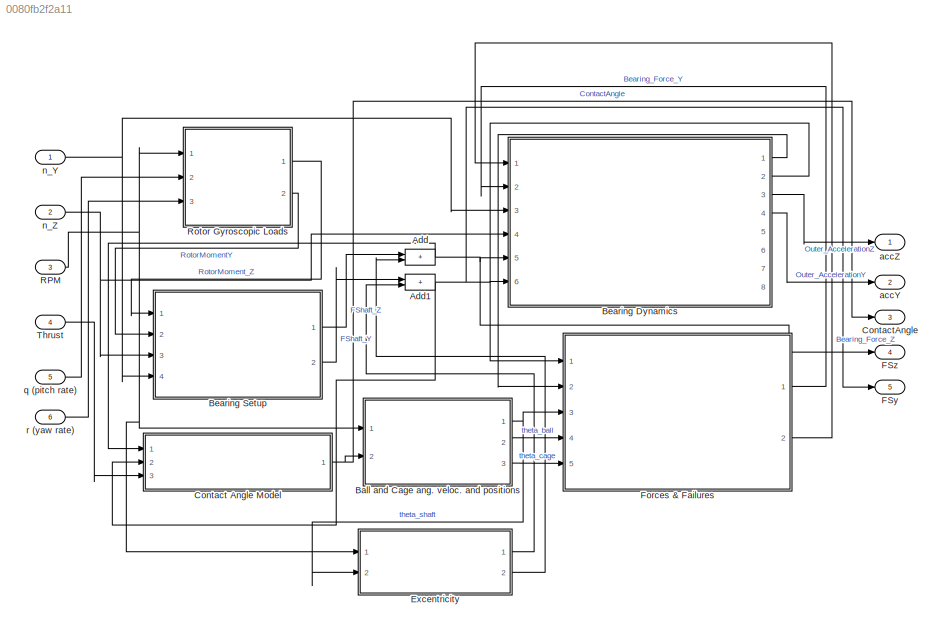
MODEL slx_0080fb2f2a11
KIND model
CONFIG AbsTol = auto
CONFIG EnableMultiTasking = off
CONFIG FixedStep = 1E-5
CONFIG MaxStep = auto
CONFIG MinStep = auto
CONFIG RelTol = 1e-6
CONFIG SampleTimeConstraint = Unconstrained
CONFIG SolverName = ode3
CONFIG StartTime = 0
CONFIG StopTime = 1
BLOCK [Sum] Add
  IconShape = rectangular
  Ports = [2, 1]
BLOCK [Sum] Add1
  IconShape = rectangular
  Ports = [2, 1]
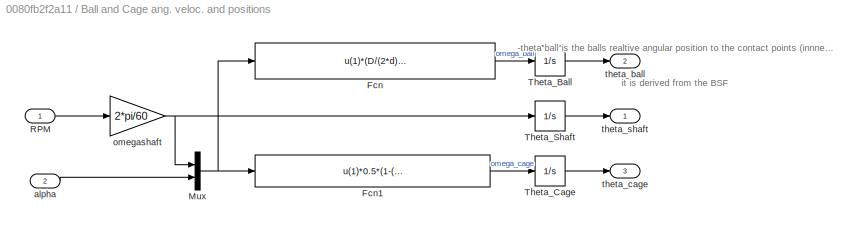
BLOCK [SubSystem] Ball and Cage ang. veloc. and positions 
  Ports = [2, 3]
  RequestExecContextInheritance = off
BLOCK [Fcn] Ball and Cage ang. veloc. and positions /Fcn
  Expr = u(1)*(D/(2*d))*(1-(d/D)^2)*(cos(u(2))^2)
BLOCK [Fcn] Ball and Cage ang. veloc. and positions /Fcn1
  Expr = u(1)*0.5*(1-(d/D)*cos(u(2)))
BLOCK [Mux] Ball and Cage ang. veloc. and positions /Mux
  DisplayOption = bar
  Inputs = 2
  Ports = [2, 1]
BLOCK [Inport] Ball and Cage ang. veloc. and positions /RPM
BLOCK [Integrator] Ball and Cage ang. veloc. and positions /Theta_Ball
  Ports = [1, 1]
  WrapState = on
  WrappedStateLowerValue = 0
  WrappedStateUpperValue = 2*pi()
BLOCK [Integrator] Ball and Cage ang. veloc. and positions /Theta_Cage
  Ports = [1, 1]
  WrapState = on
  WrappedStateLowerValue = 0
  WrappedStateUpperValue = 2*pi()
BLOCK [Integrator] Ball and Cage ang. veloc. and positions /Theta_Shaft
  Ports = [1, 1]
  WrapState = on
  WrappedStateLowerValue = 0
  WrappedStateUpperValue = 2*pi()
BLOCK [Inport] Ball and Cage ang. veloc. and positions /alpha
  Port = 2
BLOCK [Gain] Ball and Cage ang. veloc. and positions /omegashaft
  Gain = 2*pi/60
BLOCK [Outport] Ball and Cage ang. veloc. and positions /theta_ball
  Port = 2
BLOCK [Outport] Ball and Cage ang. veloc. and positions /theta_cage
  Port = 3
BLOCK [Outport] Ball and Cage ang. veloc. and positions /theta_shaft
BLOCK [SubSystem] Bearing Dynamics
  Ports = [6, 8]
  ReferencedSubsystem = Bearing_Dynamics
  RequestExecContextInheritance = off
  ShowPortLabels = SignalName
BLOCK [SubSystem] Bearing Setup
  Ports = [4, 2]
  ReferencedSubsystem = Bearing_Setup
  RequestExecContextInheritance = off
  VariantControl = Choice
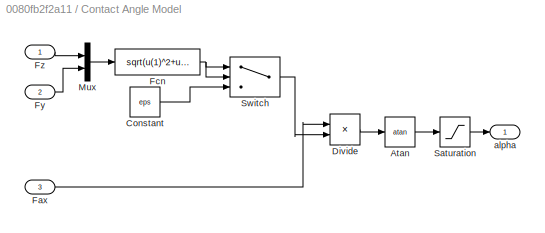
BLOCK [SubSystem] Contact Angle Model
  Ports = [3, 1]
  RequestExecContextInheritance = off
BLOCK [Trigonometry] Contact Angle Model/Atan
  Operator = atan
  Ports = [1, 1]
BLOCK [Constant] Contact Angle Model/Constant
  Value = eps
BLOCK [Product] Contact Angle Model/Divide
  Inputs = */
  NameLocation = top
  Ports = [2, 1]
BLOCK [Inport] Contact Angle Model/Fax
  Port = 3
BLOCK [Fcn] Contact Angle Model/Fcn
  Expr = sqrt(u(1)^2+u(2)^2)
BLOCK [Inport] Contact Angle Model/Fy
  Port = 2
BLOCK [Inport] Contact Angle Model/Fz
BLOCK [Mux] Contact Angle Model/Mux
  DisplayOption = bar
  Inputs = 2
  Ports = [2, 1]
BLOCK [Saturate] Contact Angle Model/Saturation
  LowerLimit = 0
  UpperLimit = pi/4
BLOCK [Switch] Contact Angle Model/Switch
  Criteria = u2 ~= 0
  InputSameDT = off
  SaturateOnIntegerOverflow = off
BLOCK [Outport] Contact Angle Model/alpha
BLOCK [Outport] ContactAngle
  Port = 3
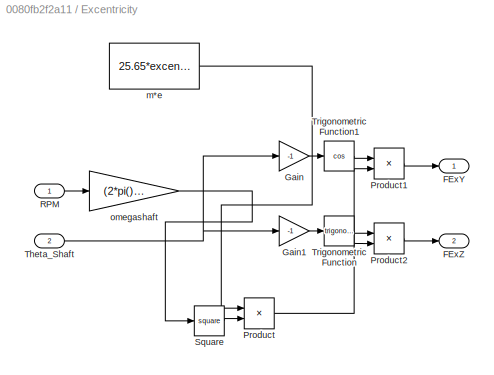
BLOCK [SubSystem] Excentricity
  Ports = [2, 2]
  RequestExecContextInheritance = off
BLOCK [Outport] Excentricity/FExY
BLOCK [Outport] Excentricity/FExZ
  Port = 2
BLOCK [Gain] Excentricity/Gain
  Gain = -1
BLOCK [Gain] Excentricity/Gain1
  Gain = -1
BLOCK [Product] Excentricity/Product
  Ports = [2, 1]
BLOCK [Product] Excentricity/Product1
  Ports = [2, 1]
BLOCK [Product] Excentricity/Product2
  Ports = [2, 1]
BLOCK [Inport] Excentricity/RPM
BLOCK [Math] Excentricity/Square
  NameLocation = right
  Operator = square
  Ports = [1, 1]
BLOCK [Inport] Excentricity/Theta_Shaft
  Port = 2
BLOCK [Trigonometry] Excentricity/Trigonometric Function
  Ports = [1, 1]
BLOCK [Trigonometry] Excentricity/Trigonometric Function1
  Operator = cos
  Ports = [1, 1]
BLOCK [Constant] Excentricity/m*e
  Value = 25.65*excentricity
BLOCK [Gain] Excentricity/omegashaft
  Gain = (2*pi()/60)
  NameLocation = right
BLOCK [Outport] FSy
  Port = 5
BLOCK [Outport] FSz
  Port = 4
BLOCK [SubSystem] Forces & Failures
  Ports = [5, 2]
  ReferencedSubsystem = Bearing_Forces_Simulink_6307
  RequestExecContextInheritance = off
BLOCK [Inport] RPM
  Port = 3
BLOCK [SubSystem] Rotor Gyroscopic Loads
  Ports = [3, 2]
  ReferencedSubsystem = Rotor_Gyroscopic_Loads
  RequestExecContextInheritance = off
BLOCK [Inport] Thrust
  Port = 4
BLOCK [Outport] accY
  Port = 2
BLOCK [Outport] accZ
BLOCK [Inport] n_Y
BLOCK [Inport] n_Z
  Port = 2
BLOCK [Inport] q (pitch rate)
  Port = 5
BLOCK [Inport] r (yaw rate)
  Port = 6
ANNOTATION Ball and Cage ang. veloc. and positions : -theta ball is the balls realtive angular position to the contact points (innner and outer ring) it is derived from the BSF
NET Add1:1 -> Bearing Dynamics:6, Contact Angle Model:2, FSy:1
NET Add:1 -> Bearing Dynamics:5, Contact Angle Model:1, FSz:1
LINE Ball and Cage ang. veloc. and positions /Fcn1:1 -> Ball and Cage ang. veloc. and positions /Theta_Cage:1
LINE Ball and Cage ang. veloc. and positions /Fcn:1 -> Ball and Cage ang. veloc. and positions /Theta_Ball:1
NET Ball and Cage ang. veloc. and positions /Mux:1 -> Ball and Cage ang. veloc. and positions /Fcn1:1, Ball and Cage ang. veloc. and positions /Fcn:1
LINE Ball and Cage ang. veloc. and positions /RPM:1 -> Ball and Cage ang. veloc. and positions /omegashaft:1
LINE Ball and Cage ang. veloc. and positions /Theta_Ball:1 -> Ball and Cage ang. veloc. and positions /theta_ball:1
LINE Ball and Cage ang. veloc. and positions /Theta_Cage:1 -> Ball and Cage ang. veloc. and positions /theta_cage:1
LINE Ball and Cage ang. veloc. and positions /Theta_Shaft:1 -> Ball and Cage ang. veloc. and positions /theta_shaft:1
LINE Ball and Cage ang. veloc. and positions /alpha:1 -> Ball and Cage ang. veloc. and positions /Mux:2
NET Ball and Cage ang. veloc. and positions /omegashaft:1 -> Ball and Cage ang. veloc. and positions /Mux:1, Ball and Cage ang. veloc. and positions /Theta_Shaft:1
NET Ball and Cage ang. veloc. and positions :1 -> Excentricity:2, Forces & Failures:3
LINE Ball and Cage ang. veloc. and positions :2 -> Forces & Failures:4
LINE Ball and Cage ang. veloc. and positions :3 -> Forces & Failures:5
LINE Bearing Dynamics:1 -> Forces & Failures:2
LINE Bearing Dynamics:2 -> Forces & Failures:1
LINE Bearing Dynamics:3 -> accZ:1
LINE Bearing Dynamics:4 -> accY:1
LINE Bearing Setup:1 -> Add:1
LINE Bearing Setup:2 -> Add1:1
LINE Contact Angle Model/Atan:1 -> Contact Angle Model/Saturation:1
LINE Contact Angle Model/Constant:1 -> Contact Angle Model/Switch:3
LINE Contact Angle Model/Divide:1 -> Contact Angle Model/Atan:1
LINE Contact Angle Model/Fax:1 -> Contact Angle Model/Divide:1
NET Contact Angle Model/Fcn:1 -> Contact Angle Model/Switch:1, Contact Angle Model/Switch:2
LINE Contact Angle Model/Fy:1 -> Contact Angle Model/Mux:2
LINE Contact Angle Model/Fz:1 -> Contact Angle Model/Mux:1
LINE Contact Angle Model/Mux:1 -> Contact Angle Model/Fcn:1
LINE Contact Angle Model/Saturation:1 -> Contact Angle Model/alpha:1
LINE Contact Angle Model/Switch:1 -> Contact Angle Model/Divide:2
NET Contact Angle Model:1 -> Ball and Cage ang. veloc. and positions :2, ContactAngle:1
LINE Excentricity/Gain1:1 -> Excentricity/Trigonometric Function:1
LINE Excentricity/Gain:1 -> Excentricity/Trigonometric Function1:1
LINE Excentricity/Product1:1 -> Excentricity/FExY:1
LINE Excentricity/Product2:1 -> Excentricity/FExZ:1
NET Excentricity/Product:1 -> Excentricity/Product1:2, Excentricity/Product2:2
LINE Excentricity/RPM:1 -> Excentricity/omegashaft:1
LINE Excentricity/Square:1 -> Excentricity/Product:2
NET Excentricity/Theta_Shaft:1 -> Excentricity/Gain1:1, Excentricity/Gain:1
LINE Excentricity/Trigonometric Function1:1 -> Excentricity/Product1:1
LINE Excentricity/Trigonometric Function:1 -> Excentricity/Product2:1
LINE Excentricity/m*e:1 -> Excentricity/Product:1
LINE Excentricity/omegashaft:1 -> Excentricity/Square:1
LINE Excentricity:1 -> Add1:2
LINE Excentricity:2 -> Add:2
LINE Forces & Failures:1 -> Bearing Dynamics:2
LINE Forces & Failures:2 -> Bearing Dynamics:1
NET RPM:1 -> Ball and Cage ang. veloc. and positions :1, Excentricity:1, Rotor Gyroscopic Loads:1
LINE Rotor Gyroscopic Loads:1 -> Bearing Setup:1
LINE Rotor Gyroscopic Loads:2 -> Bearing Setup:2
LINE Thrust:1 -> Contact Angle Model:3
NET n_Y:1 -> Bearing Dynamics:3, Bearing Setup:4
NET n_Z:1 -> Bearing Dynamics:4, Bearing Setup:3
LINE q (pitch rate):1 -> Rotor Gyroscopic Loads:2
LINE r (yaw rate):1 -> Rotor Gyroscopic Loads:3
note: NET lines group one-source signal fan-out (src -> all destinations, sorted); 1:1 wires keep LINE
